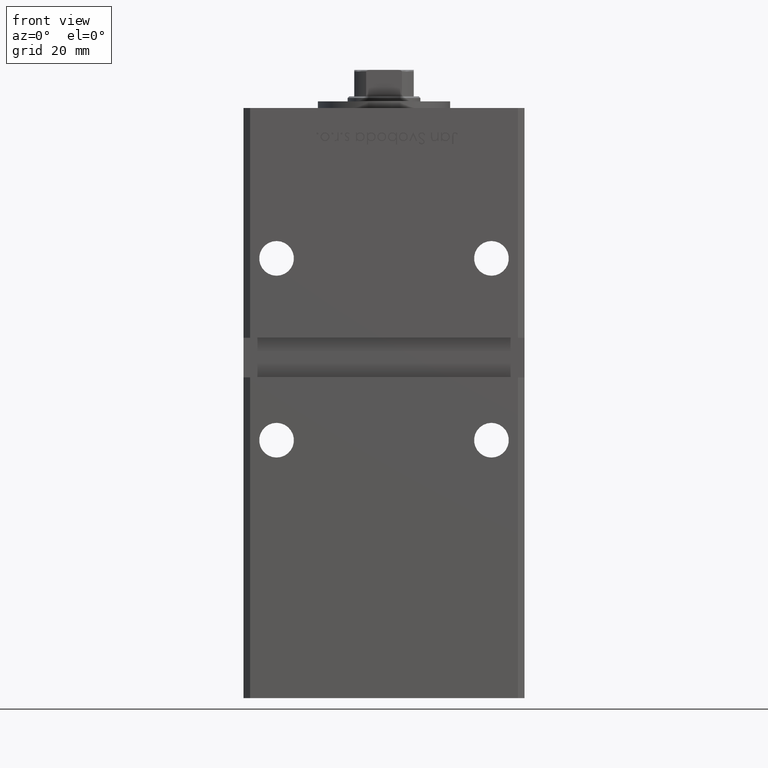
[diagram: clean part render]
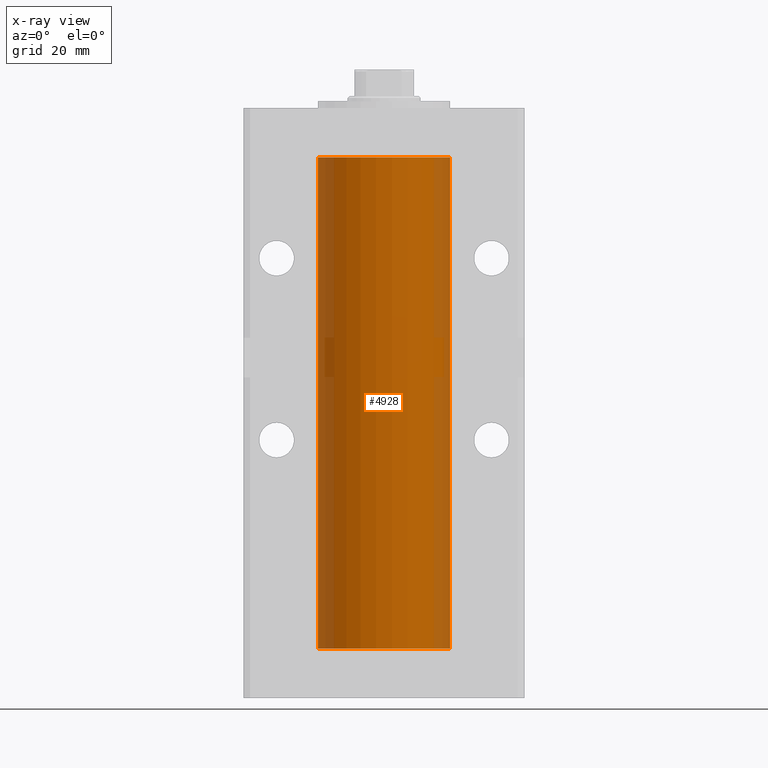
[diagram: x-ray — body ghosted, one internal face saturated and labeled with its STEP entity id]
A machine part, front view, then the same camera in x-ray: the body is ghosted and one INTERNAL B-rep face — a face not visible from any outside direction — is saturated and labeled: STEP entity #4928.
In plain terms, the highlighted cylindrical surface (partial cylindrical patch) has radius 20 mm, axis along (-0, -0, -1).
Its self-contained STEP definition (entity closure, byte-faithful):
#1290 = CARTESIAN_POINT ( 'NONE',  ( 0.000000000000000000, 0.000000000000000000, 148.5000000000000000 ) ) ;
#4727 = VERTEX_POINT ( 'NONE', #29594 ) ;
#4928 = ADVANCED_FACE ( 'NONE', ( #5350 ), #41887, .F. ) ;
#5350 = FACE_OUTER_BOUND ( 'NONE', #14641, .T. ) ;
#5599 = DIRECTION ( 'NONE',  ( -0.000000000000000000, -0.000000000000000000, -1.000000000000000000 ) ) ;
#5832 = DIRECTION ( 'NONE',  ( -0.000000000000000000, 0.000000000000000000, 1.000000000000000000 ) ) ;
#7973 = DIRECTION ( 'NONE',  ( -0.000000000000000000, -0.000000000000000000, -1.000000000000000000 ) ) ;
#10077 = EDGE_CURVE ( 'NONE', #35439, #26456, #23425, .T. ) ;
#10109 = ORIENTED_EDGE ( 'NONE', *, *, #10077, .F. ) ;
#10945 = CARTESIAN_POINT ( 'NONE',  ( 0.000000000000000000, 0.000000000000000000, 0.000000000000000000 ) ) ;
#12054 = ORIENTED_EDGE ( 'NONE', *, *, #36433, .T. ) ;
#12988 = DIRECTION ( 'NONE',  ( 1.000000000000000000, 0.000000000000000000, 0.000000000000000000 ) ) ;
#14157 = EDGE_CURVE ( 'NONE', #35439, #33850, #52974, .T. ) ;
#14641 = EDGE_LOOP ( 'NONE', ( #22202, #12054, #18041, #10109 ) ) ;
#17192 = DIRECTION ( 'NONE',  ( -1.000000000000000000, 0.000000000000000000, 0.000000000000000000 ) ) ;
#17795 = AXIS2_PLACEMENT_3D ( 'NONE', #37953, #50037, #12988 ) ;
#18041 = ORIENTED_EDGE ( 'NONE', *, *, #40795, .F. ) ;
#19011 = CARTESIAN_POINT ( 'NONE',  ( -20.00000000000000000, 0.000000000000000000, 148.5000000000000000 ) ) ;
#22202 = ORIENTED_EDGE ( 'NONE', *, *, #14157, .T. ) ;
#23425 = LINE ( 'NONE', #40346, #28809 ) ;
#24572 = CARTESIAN_POINT ( 'NONE',  ( -20.00000000000000000, 0.000000000000000000, 0.000000000000000000 ) ) ;
#26456 = VERTEX_POINT ( 'NONE', #24572 ) ;
#28809 = VECTOR ( 'NONE', #39814, 1000.000000000000000 ) ;
#29594 = CARTESIAN_POINT ( 'NONE',  ( 20.00000000000000000, 2.449293598294706513E-15, 0.000000000000000000 ) ) ;
#32715 = LINE ( 'NONE', #53112, #48659 ) ;
#33850 = VERTEX_POINT ( 'NONE', #45484 ) ;
#34196 = CIRCLE ( 'NONE', #45351, 20.00000000000000000 ) ;
#35439 = VERTEX_POINT ( 'NONE', #19011 ) ;
#36433 = EDGE_CURVE ( 'NONE', #33850, #4727, #32715, .T. ) ;
#37953 = CARTESIAN_POINT ( 'NONE',  ( 0.000000000000000000, 0.000000000000000000, 148.5000000000000000 ) ) ;
#39814 = DIRECTION ( 'NONE',  ( -0.000000000000000000, -0.000000000000000000, -1.000000000000000000 ) ) ;
#40346 = CARTESIAN_POINT ( 'NONE',  ( -20.00000000000000000, 0.000000000000000000, 148.5000000000000000 ) ) ;
#40795 = EDGE_CURVE ( 'NONE', #26456, #4727, #34196, .T. ) ;
#41887 = CYLINDRICAL_SURFACE ( 'NONE', #47669, 20.00000000000000000 ) ;
#45351 = AXIS2_PLACEMENT_3D ( 'NONE', #10945, #5832, #51231 ) ;
#45484 = CARTESIAN_POINT ( 'NONE',  ( 20.00000000000000000, 2.449293598294706513E-15, 148.5000000000000000 ) ) ;
#47669 = AXIS2_PLACEMENT_3D ( 'NONE', #1290, #5599, #17192 ) ;
#48659 = VECTOR ( 'NONE', #7973, 1000.000000000000000 ) ;
#50037 = DIRECTION ( 'NONE',  ( -0.000000000000000000, 0.000000000000000000, 1.000000000000000000 ) ) ;
#51231 = DIRECTION ( 'NONE',  ( 1.000000000000000000, 0.000000000000000000, 0.000000000000000000 ) ) ;
#52974 = CIRCLE ( 'NONE', #17795, 20.00000000000000000 ) ;
#53112 = CARTESIAN_POINT ( 'NONE',  ( 20.00000000000000000, 2.449293598294706513E-15, 148.5000000000000000 ) ) ;